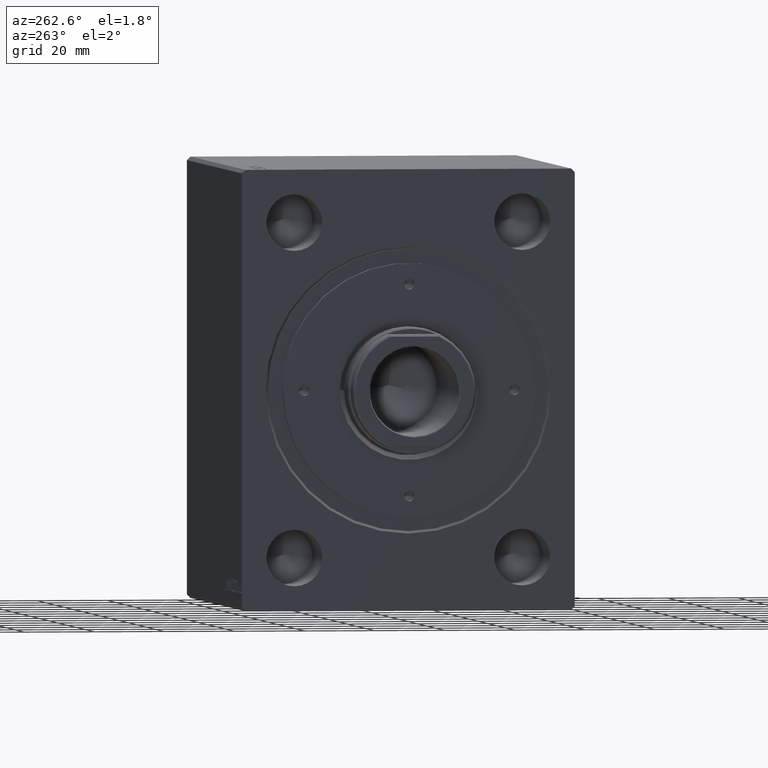
[diagram: clean part render]
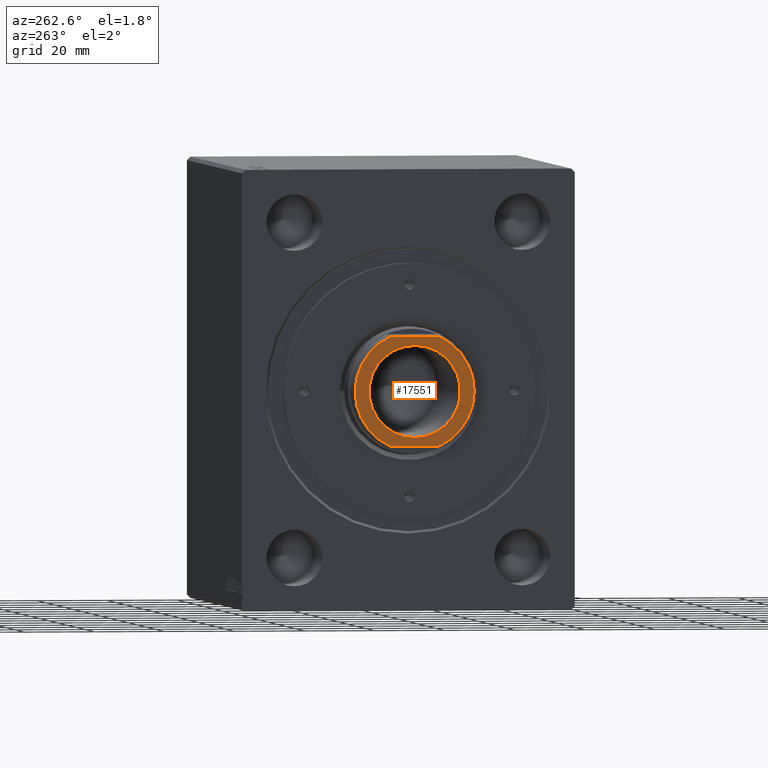
[diagram: same view with one face highlighted and labeled with its STEP entity id]
A machine part, auxiliary view. The second image highlights one B-rep face of the part: STEP entity #17551.
In plain terms, the highlighted planar face has unit normal (-1, 0, 0).
Its self-contained STEP definition (entity closure, byte-faithful):
#221 = EDGE_CURVE ( 'NONE', #19063, #18181, #17031, .T. ) ;
#1916 = EDGE_CURVE ( 'NONE', #23746, #19063, #8387, .T. ) ;
#4815 = CARTESIAN_POINT ( 'NONE',  ( 0.000000000000000000, 0.000000000000000000, 114.2000000000000028 ) ) ;
#5067 = CARTESIAN_POINT ( 'NONE',  ( 13.04999999999997584, 0.000000000000000000, 114.2000000000000028 ) ) ;
#5107 = DIRECTION ( 'NONE',  ( 1.000000000000000000, 0.000000000000000000, 0.000000000000000000 ) ) ;
#5235 = CARTESIAN_POINT ( 'NONE',  ( 0.000000000000000000, 0.000000000000000000, 114.2000000000000028 ) ) ;
#5364 = CARTESIAN_POINT ( 'NONE',  ( -15.50000000000000000, -6.982120021884444583, 114.2000000000000028 ) ) ;
#5396 = EDGE_LOOP ( 'NONE', ( #42706, #39630 ) ) ;
#5893 = DIRECTION ( 'NONE',  ( 1.000000000000000000, 0.000000000000000000, 0.000000000000000000 ) ) ;
#7654 = VERTEX_POINT ( 'NONE', #18772 ) ;
#8013 = DIRECTION ( 'NONE',  ( 0.000000000000000000, 0.000000000000000000, 1.000000000000000000 ) ) ;
#8056 = DIRECTION ( 'NONE',  ( 1.000000000000000000, 0.000000000000000000, 0.000000000000000000 ) ) ;
#8387 = LINE ( 'NONE', #11919, #39156 ) ;
#9012 = VERTEX_POINT ( 'NONE', #5067 ) ;
#9308 = CARTESIAN_POINT ( 'NONE',  ( 15.50000000000000000, -6.982120021884444583, 114.2000000000000028 ) ) ;
#10386 = EDGE_CURVE ( 'NONE', #9012, #34084, #24539, .T. ) ;
#11598 = DIRECTION ( 'NONE',  ( -0.000000000000000000, -0.000000000000000000, -1.000000000000000000 ) ) ;
#11919 = CARTESIAN_POINT ( 'NONE',  ( -15.50000000000000000, -7.088723439378881608, 114.2000000000000028 ) ) ;
#14012 = CIRCLE ( 'NONE', #25373, 13.04999999999997584 ) ;
#14578 = AXIS2_PLACEMENT_3D ( 'NONE', #18738, #32302, #15397 ) ;
#14729 = EDGE_CURVE ( 'NONE', #18181, #7654, #26515, .T. ) ;
#14877 = CARTESIAN_POINT ( 'NONE',  ( 0.000000000000000000, 0.000000000000000000, 114.2000000000000028 ) ) ;
#15397 = DIRECTION ( 'NONE',  ( 1.000000000000000000, 0.000000000000000000, 0.000000000000000000 ) ) ;
#16727 = DIRECTION ( 'NONE',  ( 0.000000000000000000, 1.000000000000000000, 0.000000000000000000 ) ) ;
#17031 = CIRCLE ( 'NONE', #34827, 16.99999999999998579 ) ;
#17551 = ADVANCED_FACE ( 'NONE', ( #31713, #21698 ), #35275, .T. ) ;
#18181 = VERTEX_POINT ( 'NONE', #9308 ) ;
#18738 = CARTESIAN_POINT ( 'NONE',  ( 0.000000000000000000, 0.000000000000000000, 114.2000000000000028 ) ) ;
#18772 = CARTESIAN_POINT ( 'NONE',  ( 15.50000000000000000, 6.982120021884444583, 114.2000000000000028 ) ) ;
#19063 = VERTEX_POINT ( 'NONE', #5364 ) ;
#19912 = AXIS2_PLACEMENT_3D ( 'NONE', #4815, #25246, #39262 ) ;
#21113 = EDGE_CURVE ( 'NONE', #34084, #9012, #14012, .T. ) ;
#21698 = FACE_BOUND ( 'NONE', #5396, .T. ) ;
#21830 = AXIS2_PLACEMENT_3D ( 'NONE', #14877, #8013, #5107 ) ;
#22007 = EDGE_CURVE ( 'NONE', #7654, #23746, #43877, .T. ) ;
#23746 = VERTEX_POINT ( 'NONE', #37582 ) ;
#24539 = CIRCLE ( 'NONE', #14578, 13.04999999999997584 ) ;
#24791 = VECTOR ( 'NONE', #16727, 1000.000000000000000 ) ;
#24926 = CARTESIAN_POINT ( 'NONE',  ( 0.000000000000000000, 0.000000000000000000, 114.2000000000000028 ) ) ;
#25246 = DIRECTION ( 'NONE',  ( 0.000000000000000000, 0.000000000000000000, 1.000000000000000000 ) ) ;
#25373 = AXIS2_PLACEMENT_3D ( 'NONE', #24926, #11598, #8056 ) ;
#26515 = LINE ( 'NONE', #30301, #24791 ) ;
#27374 = CARTESIAN_POINT ( 'NONE',  ( -13.04999999999997584, 1.598164072887293013E-15, 114.2000000000000028 ) ) ;
#29842 = EDGE_LOOP ( 'NONE', ( #43146, #42824, #32885, #43904 ) ) ;
#30301 = CARTESIAN_POINT ( 'NONE',  ( 15.50000000000000000, 7.088723439378881608, 114.2000000000000028 ) ) ;
#31713 = FACE_OUTER_BOUND ( 'NONE', #29842, .T. ) ;
#32302 = DIRECTION ( 'NONE',  ( -0.000000000000000000, -0.000000000000000000, -1.000000000000000000 ) ) ;
#32349 = DIRECTION ( 'NONE',  ( 0.000000000000000000, 0.000000000000000000, 1.000000000000000000 ) ) ;
#32885 = ORIENTED_EDGE ( 'NONE', *, *, #14729, .T. ) ;
#34084 = VERTEX_POINT ( 'NONE', #27374 ) ;
#34827 = AXIS2_PLACEMENT_3D ( 'NONE', #5235, #32349, #5893 ) ;
#35275 = PLANE ( 'NONE',  #19912 ) ;
#37582 = CARTESIAN_POINT ( 'NONE',  ( -15.50000000000000000, 6.982120021884445471, 114.2000000000000028 ) ) ;
#39156 = VECTOR ( 'NONE', #39721, 1000.000000000000000 ) ;
#39262 = DIRECTION ( 'NONE',  ( 1.000000000000000000, 0.000000000000000000, -0.000000000000000000 ) ) ;
#39630 = ORIENTED_EDGE ( 'NONE', *, *, #21113, .T. ) ;
#39721 = DIRECTION ( 'NONE',  ( 0.000000000000000000, -1.000000000000000000, 0.000000000000000000 ) ) ;
#42706 = ORIENTED_EDGE ( 'NONE', *, *, #10386, .T. ) ;
#42824 = ORIENTED_EDGE ( 'NONE', *, *, #221, .T. ) ;
#43146 = ORIENTED_EDGE ( 'NONE', *, *, #1916, .T. ) ;
#43877 = CIRCLE ( 'NONE', #21830, 16.99999999999998579 ) ;
#43904 = ORIENTED_EDGE ( 'NONE', *, *, #22007, .T. ) ;